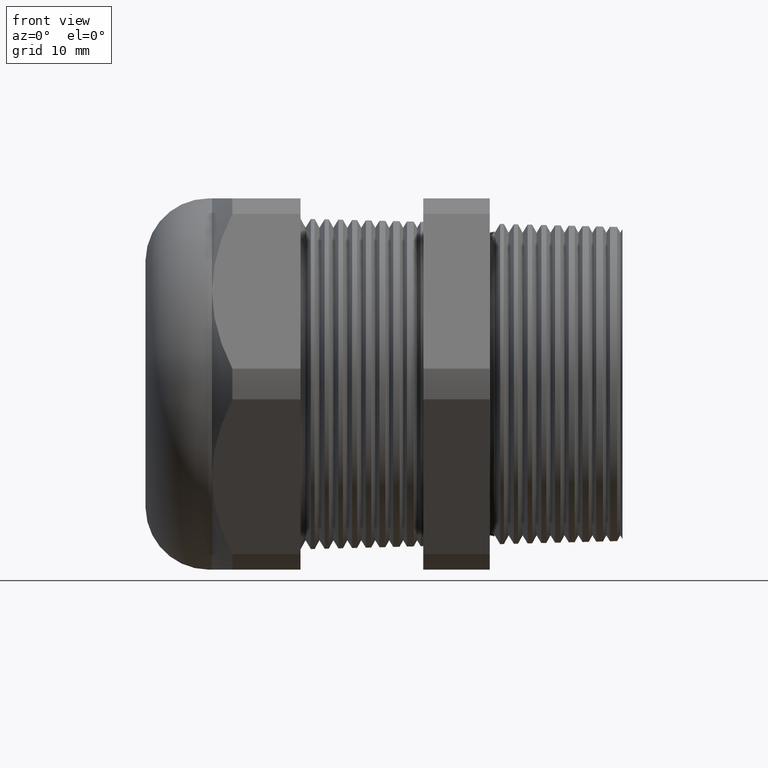
[diagram: clean part render]
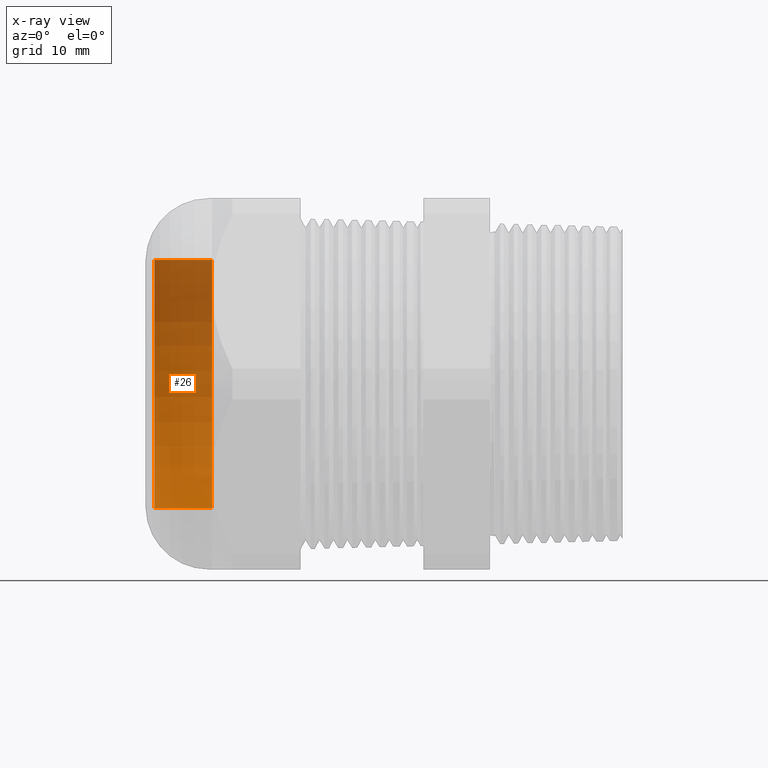
[diagram: x-ray — body ghosted, one internal face saturated and labeled with its STEP entity id]
A machine part, front view, then the same camera in x-ray: the body is ghosted and one INTERNAL B-rep face — a face not visible from any outside direction — is saturated and labeled: STEP entity #26.
In plain terms, the highlighted cylindrical surface (partial cylindrical patch) has radius 14.0017 mm, axis along (1, 0, 0).
Its self-contained STEP definition (entity closure, byte-faithful):
#16 = ORIENTED_EDGE ( 'NONE', *, *, #24, .T. ) ;
#17 = ORIENTED_EDGE ( 'NONE', *, *, #35, .T. ) ;
#18 = VERTEX_POINT ( 'NONE', #1632 ) ;
#19 = ORIENTED_EDGE ( 'NONE', *, *, #21, .F. ) ;
#20 = VERTEX_POINT ( 'NONE', #1631 ) ;
#21 = EDGE_CURVE ( 'NONE', #20, #18, #1630, .T. ) ;
#22 = ORIENTED_EDGE ( 'NONE', *, *, #23, .F. ) ;
#23 = EDGE_CURVE ( 'NONE', #27, #20, #1625, .T. ) ;
#24 = EDGE_CURVE ( 'NONE', #4153, #18, #1621, .T. ) ;
#25 = EDGE_LOOP ( 'NONE', ( #17, #16, #19, #22 ) ) ;
#26 = ADVANCED_FACE ( 'NONE', ( #1681 ), #1680, .T. ) ;
#27 = VERTEX_POINT ( 'NONE', #1675 ) ;
#35 = EDGE_CURVE ( 'NONE', #27, #4153, #1659, .T. ) ;
#1618 = DIRECTION ( 'NONE',  ( 1.000000000000000000, 0.0000000000000000000, 0.0000000000000000000 ) ) ;
#1619 = VECTOR ( 'NONE', #1618, 39.37007874015748100 ) ;
#1620 = CARTESIAN_POINT ( 'NONE',  ( 0.0000000000000000000, 6.750865480299784700E-017, 0.5512500000000000200 ) ) ;
#1621 = LINE ( 'NONE', #1620, #1619 ) ;
#1622 = DIRECTION ( 'NONE',  ( 1.000000000000000000, 0.0000000000000000000, 0.0000000000000000000 ) ) ;
#1623 = VECTOR ( 'NONE', #1622, 39.37007874015748100 ) ;
#1624 = CARTESIAN_POINT ( 'NONE',  ( 0.0000000000000000000, 0.0000000000000000000, -0.5512500000000000200 ) ) ;
#1625 = LINE ( 'NONE', #1624, #1623 ) ;
#1626 = DIRECTION ( 'NONE',  ( 0.0000000000000000000, 0.0000000000000000000, -1.000000000000000000 ) ) ;
#1627 = DIRECTION ( 'NONE',  ( 1.000000000000000000, 0.0000000000000000000, 0.0000000000000000000 ) ) ;
#1628 = CARTESIAN_POINT ( 'NONE',  ( -1.544724409448818800, 0.0000000000000000000, 0.0000000000000000000 ) ) ;
#1629 = AXIS2_PLACEMENT_3D ( 'NONE', #1628, #1627, #1626 ) ;
#1630 = CIRCLE ( 'NONE', #1629, 0.5512500000000000200 ) ;
#1631 = CARTESIAN_POINT ( 'NONE',  ( -1.544724409448818800, 0.0000000000000000000, -0.5512500000000000200 ) ) ;
#1632 = CARTESIAN_POINT ( 'NONE',  ( -1.544724409448818800, 6.750865480299784700E-017, 0.5512500000000000200 ) ) ;
#1655 = DIRECTION ( 'NONE',  ( 0.0000000000000000000, 0.0000000000000000000, -1.000000000000000000 ) ) ;
#1656 = DIRECTION ( 'NONE',  ( 1.000000000000000000, 0.0000000000000000000, 0.0000000000000000000 ) ) ;
#1657 = CARTESIAN_POINT ( 'NONE',  ( -1.800999999999999900, 0.0000000000000000000, 0.0000000000000000000 ) ) ;
#1658 = AXIS2_PLACEMENT_3D ( 'NONE', #1657, #1656, #1655 ) ;
#1659 = CIRCLE ( 'NONE', #1658, 0.5512499999999999100 ) ;
#1675 = CARTESIAN_POINT ( 'NONE',  ( -1.800999999999999900, 0.0000000000000000000, -0.5512499999999999100 ) ) ;
#1676 = DIRECTION ( 'NONE',  ( 0.0000000000000000000, 0.0000000000000000000, -1.000000000000000000 ) ) ;
#1677 = DIRECTION ( 'NONE',  ( 1.000000000000000000, 0.0000000000000000000, 0.0000000000000000000 ) ) ;
#1678 = CARTESIAN_POINT ( 'NONE',  ( 0.0000000000000000000, 0.0000000000000000000, 0.0000000000000000000 ) ) ;
#1679 = AXIS2_PLACEMENT_3D ( 'NONE', #1678, #1677, #1676 ) ;
#1680 = CYLINDRICAL_SURFACE ( 'NONE', #1679, 0.5512500000000000200 ) ;
#1681 = FACE_OUTER_BOUND ( 'NONE', #25, .T. ) ;
#3697 = CARTESIAN_POINT ( 'NONE',  ( -1.800999999999999900, 6.750865480299784700E-017, 0.5512499999999999100 ) ) ;
#4153 = VERTEX_POINT ( 'NONE', #3697 ) ;